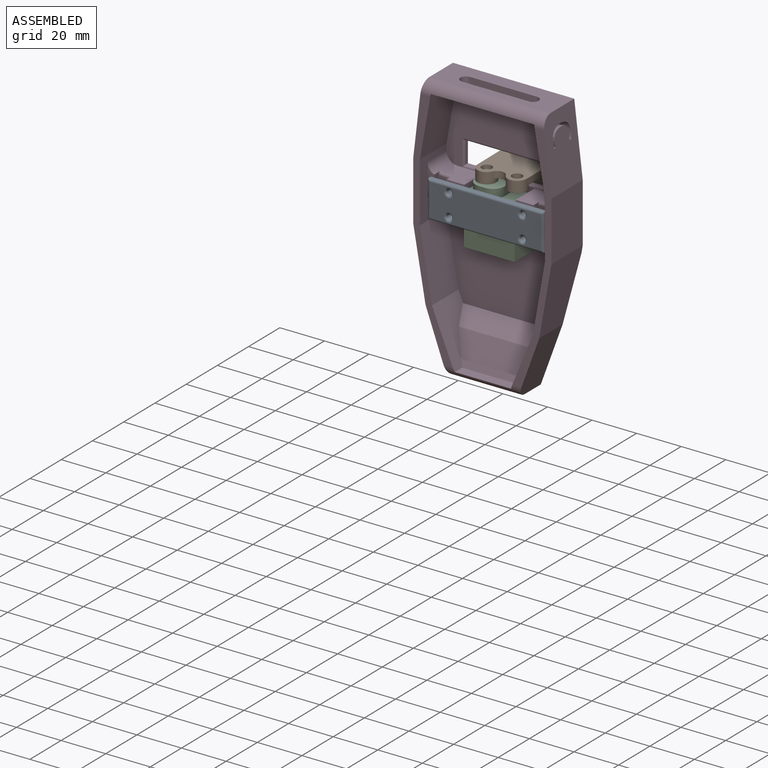
[diagram: assembled view]
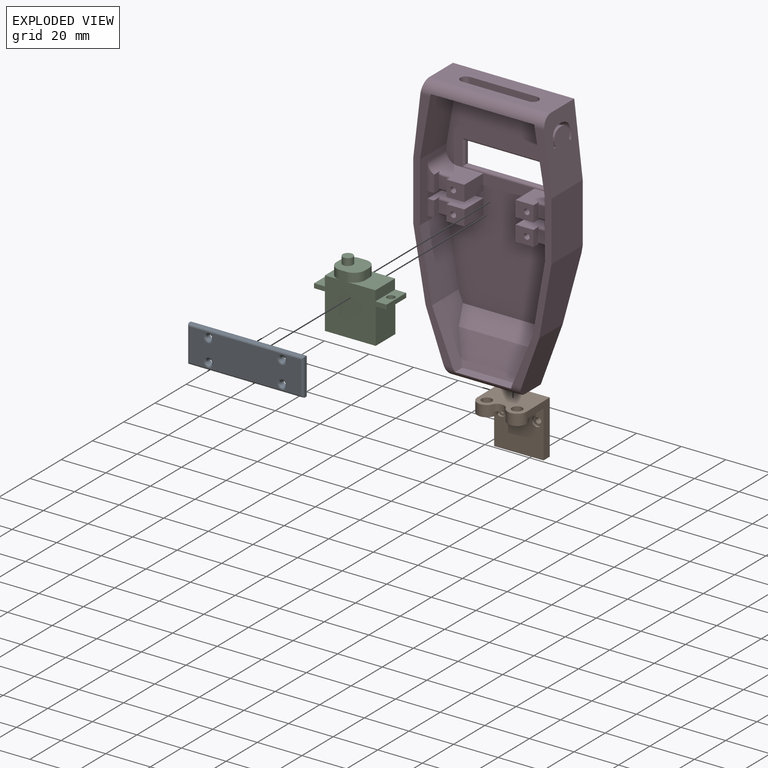
[diagram: exploded view]
GUIDED TOUR — MATED ASSEMBLY (Onshape document 9e62530b01b5d1049aa29101, AutoMate assembly 9e62530b01b5d1049aa29101_0b857b8ccb9b831618954fb7_9dfc92ab696563d88a37ce73_default)

This assembly has 4 components, labeled P0..P3 below (a component is one placed occurrence of a part; the same part can appear more than once), held together by 6 mates. A mate is a constraint between two components; its type names the relative motion it leaves free:
  FASTENED — locks the two components together rigidly (no relative motion),
  PLANAR — leaves sliding in the plane through the listed point (normal = the listed direction) and rotation about that normal free,
  REVOLUTE — leaves rotation about the listed axis free (a hinge).
Axis/direction vectors are unit vectors and 'through' points are millimeter coordinates, both in the assembly's world frame.

MATES
  1. PLANAR "Planar 2": P2 <-> P3, direction (0.000, 0.000, 1.000) through (27.91, 5.45, 15.18) mm
  2. PLANAR "Planar 3": P3 <-> P2, direction (-1.000, 0.000, 0.000) through (25.66, 12.00, 18.68) mm
  3. FASTENED "Fastened 1": P0 <-> P3, direction (0.000, 1.000, 0.000) through (30.66, 5.95, 18.68) mm
  4. REVOLUTE "Revolute 2": P0 <-> P3, axis (0.000, 1.000, 0.000) through (-2.34, 5.95, 8.68) mm
  5. PLANAR "Planar 1": P2 <-> P3, direction (0.000, 1.000, 0.000) through (14.08, 18.05, 8.89) mm
  6. REVOLUTE "Revolute 1": P1 <-> P2, axis (0.000, 0.000, -1.000) through (8.66, 11.75, 23.68) mm

ASSEMBLY ORDER
  1. P3 — the base component [order heuristic]
  2. P2 — core [order heuristic]
  3. P1 — core [order heuristic]
  4. P0 [order verified]
Order-tag legend:
  [order verified] — this step's position reverses a verified removal order: the component was checked to insert without passing through the ones already placed.
  [order heuristic] — the first 3 components form the assembly's core: parts whose collision-free extraction could not be verified, listed in mate-graph order.

Of the 4 components, 1 carries the full construction recipe — the FeatureScript program that regenerates the part's solid from scratch; the rest are supplied as boundary geometry only.
Each toured component is shown spotlighted twice — in the assembled view, then in the exploded view, where a leader line traces a displaced component back to its assembled socket (saturated green if recipe-attached, orange if geometry-only; every other component desaturated gray) — followed by its recipe or geometry summary and the mates that hold it.
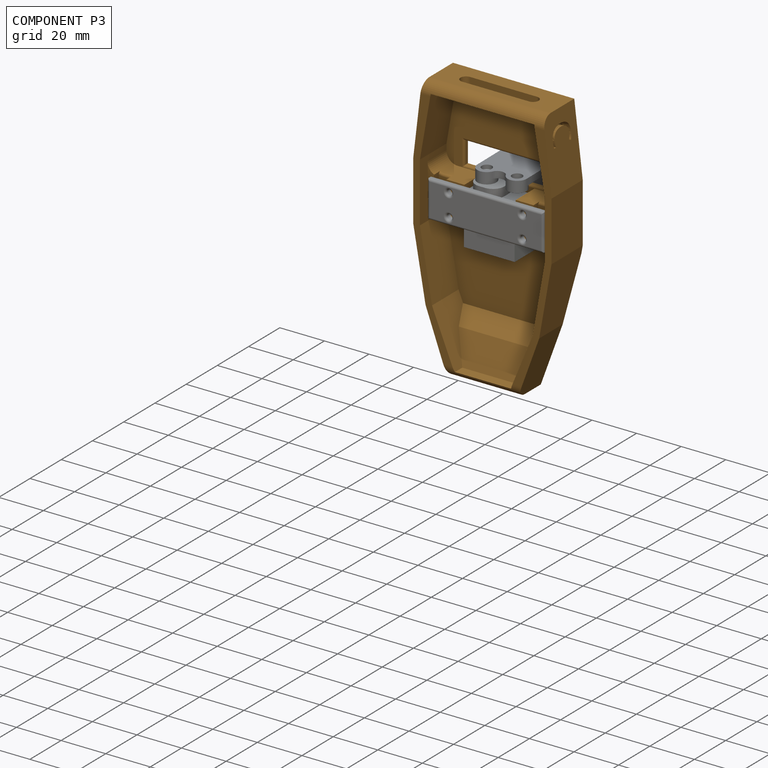
[diagram: component P3 — assembled]
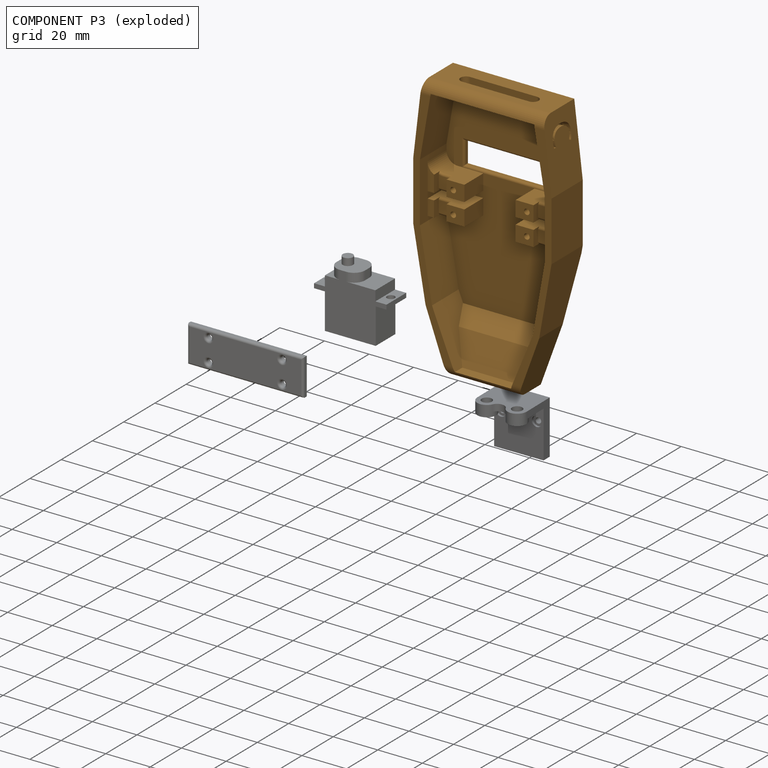
[diagram: component P3 — exploded]
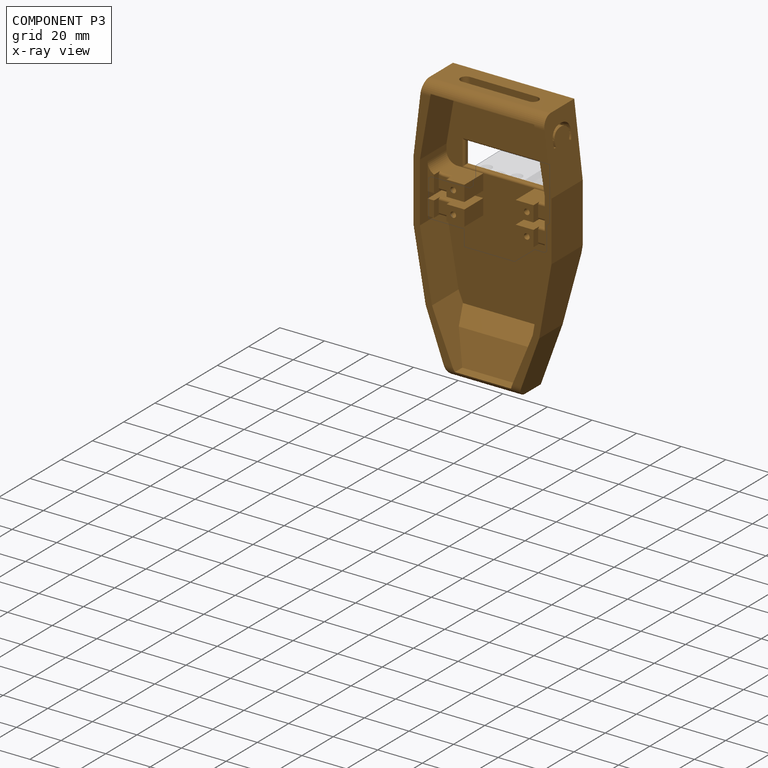
[diagram: component P3 — x-ray view]
COMPONENT P3 — geometry summary (no construction recipe available for this part):
  bounding box: 117.1 x 62.1 x 20.1 mm
  B-rep topology: 1 solid, 117 faces, 640 edges
  volume: 42399 mm^3 (29% of its bounding box)
  symmetry: mirror-symmetric across its x mid-plane
Held by: PLANAR mate "Planar 2" to P2; PLANAR mate "Planar 3" to P2; FASTENED mate "Fastened 1" to P0; REVOLUTE mate "Revolute 2" to P0; PLANAR mate "Planar 1" to P2.
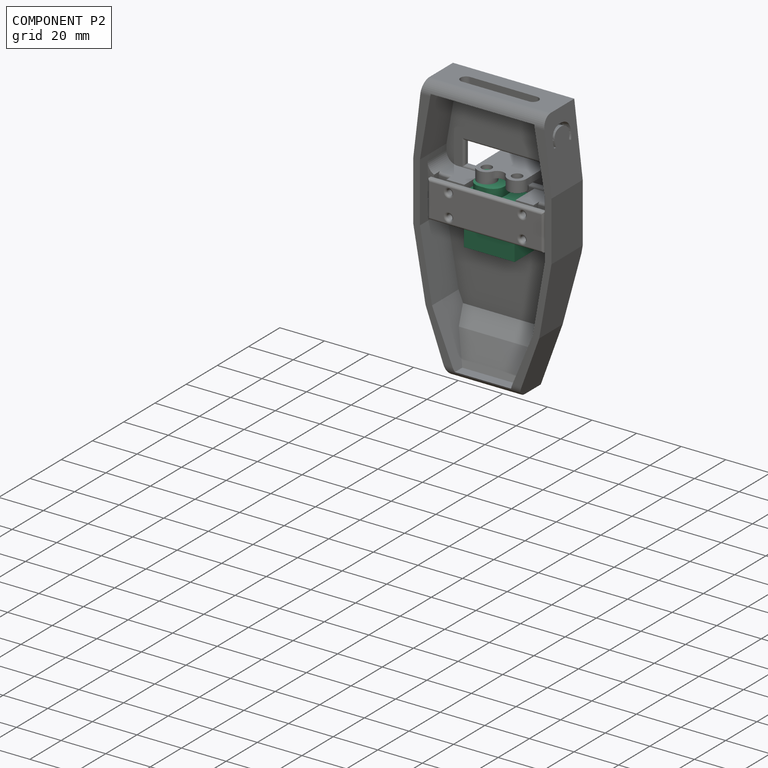
[diagram: component P2 — assembled]
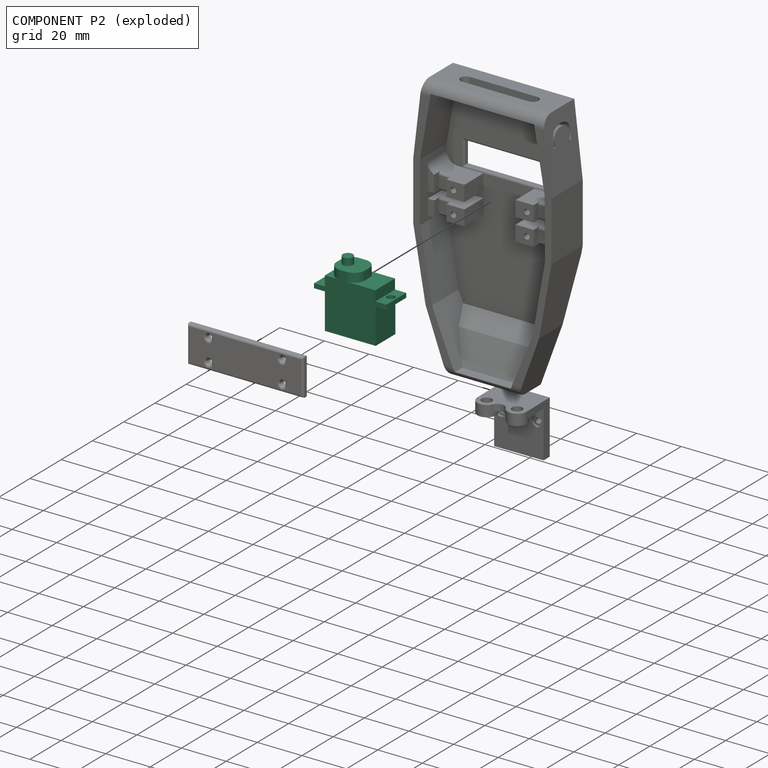
[diagram: component P2 — exploded]
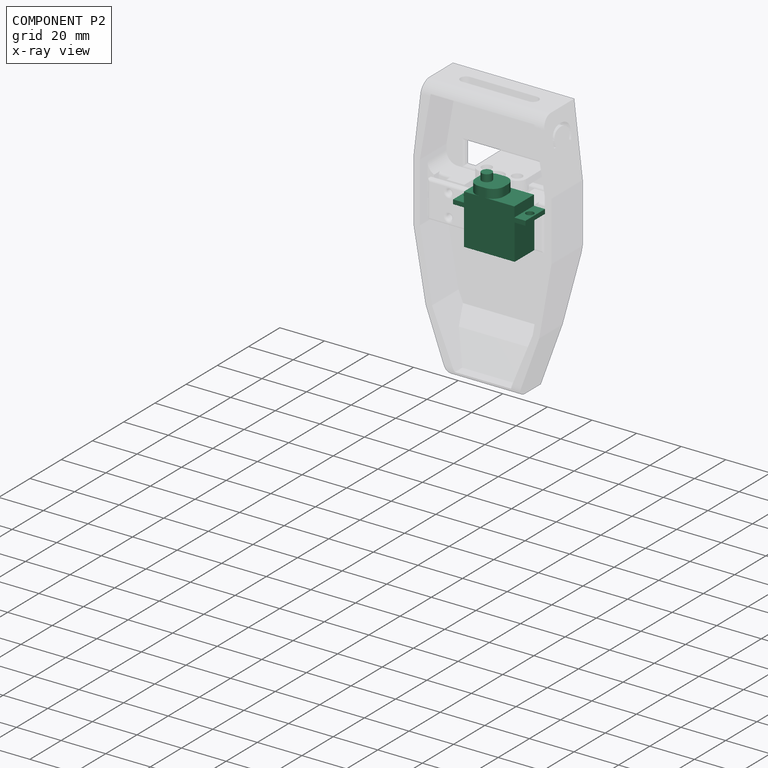
[diagram: component P2 — x-ray view]
COMPONENT P2 — recipe-attached (CADFS 00271476, mesh-verified: the recipe's output STEP matches this component's geometry to below the mesh-comparison resolution (tessellation chordal tolerance ~0.0687 mm)).
Held by: PLANAR mate "Planar 2" to P3; PLANAR mate "Planar 3" to P3; PLANAR mate "Planar 1" to P3; REVOLUTE mate "Revolute 1" to P1.
Construction recipe (FeatureScript — the CAD program that rebuilds this solid; sketch coordinates are in the units given by the * unit suffixes, e.g. mm):

FeatureScript 1511;
import(path : "onshape/std/geometry.fs", version : "1511.0");
import(path : "onshape/std/common.fs", version : "1511.0");
const mm = millimeter;
const VERTEX = EntityType.VERTEX;
const EDGE = EntityType.EDGE;
const FACE = EntityType.FACE;
const BODY = EntityType.BODY;
function v(x, y){return vector(x, y);}
function OD(order){return orderDisambiguation(order);}
function OSD(set){return originalSetDisambiguation(set);}
function TD(topology){return topologyDisambiguation(topology);}
function TDD(query){return trueDependencyDisambiguation(query);}
function sQuery(a, b, c) {return sketchEntityQuery(a, b, c);}

annotation { "Feature Type Name" : "Feature", "Feature Type Description" : "" }
export const myFeature = defineFeature(function(context is Context, id is Id, definition is map)
    precondition{}
    {
        {
            var Q0;
            Q0=qCreatedBy(makeId("Front.planeOp"),FACE);
            var sketch = newSketch(context, id + "F0", { "sketchPlane" : qUnion([Q0])});
            skLineSegment(sketch, "E0", {"start": v(0, 16) * mm, "end": v(0, 0) * mm});
            skLineSegment(sketch, "E1", {"start": v(0, 0) * mm, "end": v(22.8, 0) * mm});
            skLineSegment(sketch, "E2", {"start": v(22.8, 0) * mm, "end": v(22.8, 16) * mm});
            skLineSegment(sketch, "E3", {"start": v(22.8, 16) * mm, "end": v(27.65, 16) * mm});
            skLineSegment(sketch, "E4", {"start": v(27.65, 16) * mm, "end": v(27.65, 18) * mm});
            skLineSegment(sketch, "E5", {"start": v(27.65, 18) * mm, "end": v(22.65, 18) * mm});
            skLineSegment(sketch, "E6", {"start": v(0, 18) * mm, "end": v(-4.85, 18) * mm});
            skLineSegment(sketch, "E7", {"start": v(-4.85, 18) * mm, "end": v(-4.85, 16) * mm});
            skLineSegment(sketch, "E8", {"start": v(-4.85, 16) * mm, "end": v(0, 16) * mm});
            skLineSegment(sketch, "E9", {"start": v(0, 18) * mm, "end": v(0, 22.5) * mm});
            skLineSegment(sketch, "E10", {"start": v(0, 22.5) * mm, "end": v(1.76, 22.5) * mm});
            skLineSegment(sketch, "E11", {"start": v(1.76, 22.5) * mm, "end": v(1.76, 26.5) * mm});
            skLineSegment(sketch, "E12", {"start": v(1.76, 26.5) * mm, "end": v(14.57, 26.5) * mm});
            skLineSegment(sketch, "E13", {"start": v(14.57, 26.5) * mm, "end": v(14.57, 22.5) * mm});
            skLineSegment(sketch, "E14", {"start": v(14.57, 22.5) * mm, "end": v(22.65, 22.5) * mm});
            skLineSegment(sketch, "E15", {"start": v(22.65, 22.5) * mm, "end": v(22.65, 18) * mm});
            skSolve(sketch);
        }
        {
            var Q0;
            Q0 = qSketchRegion(id + "F0", true);
            extrude(context, id + "F1", {"entities" : qUnion([Q0]), "depth" : 12.6 * mm});
        }
        {
            var Q0;
            Q0=makeQuery(id+"F1.opExtrude","SWEPT_FACE",FACE,{"disambiguationData":[OSD([sQuery(id+"F0.wireOp",EDGE,"E5")])]});
            var sketch = newSketch(context, id + "F2", { "sketchPlane" : qUnion([Q0])});
            skCircle(sketch, "E16", {"center": v(-2.4, -6.3) * mm, "radius": 1.75 * mm});
            skCircle(sketch, "E17", {"center": v(25.2, -6.3) * mm, "radius": 1.75 * mm});
            skLineSegment(sketch, "E18", {"start": v(-4.85, -6.3) * mm, "end": v(-2.4, -6.3) * mm, "construction": true});
            skLineSegment(sketch, "E19", {"start": v(-2.4, -6.3) * mm, "end": v(25.2, -6.3) * mm, "construction": true});
            skLineSegment(sketch, "E20", {"start": v(25.2, -6.3) * mm, "end": v(27.65, -6.3) * mm, "construction": true});
            skSolve(sketch);
        }
        {
            var Q0;
            Q0 = qSketchRegion(id + "F2", true);
            extrude(context, id + "F3", {"entities" : qUnion([Q0]), "operationType" : NewBodyOperationType.REMOVE, "endBound" : BoundingType.UP_TO_NEXT, "oppositeDirection" : true, "depth" : 25 * mm});
        }
        {
            var Q0;
            Q0=makeQuery(id+"F1.opExtrude","SWEPT_FACE",FACE,{"disambiguationData":[OSD([sQuery(id+"F0.wireOp",EDGE,"E12")])]});
            var sketch = newSketch(context, id + "F4", { "sketchPlane" : qUnion([Q0])});
            skCircle(sketch, "E21", {"center": v(5.9, -6.3) * mm, "radius": 2.3 * mm});
            skLineSegment(sketch, "E22", {"start": v(5.9, -6.3) * mm, "end": v(1.76, -6.3) * mm, "construction": true});
            skSolve(sketch);
        }
        {
            var Q0;
            Q0 = qSketchRegion(id + "F4", true);
            extrude(context, id + "F5", {"entities" : qUnion([Q0]), "operationType" : NewBodyOperationType.ADD, "depth" : 3.2 * mm});
        }
        {
            var Q0;
            Q0=makeQuery(id+"F1.opExtrude","CAP_EDGE",EDGE,{"disambiguationData":[OSD([sQuery(id+"F0.wireOp",EDGE,"E13")])],"isStart":true});
            var Q1;
            Q1=makeQuery(id+"F1.opExtrude","CAP_EDGE",EDGE,{"disambiguationData":[OSD([sQuery(id+"F0.wireOp",EDGE,"E13")])],"isStart":false});
            var Q2;
            Q2=makeQuery(id+"F1.opExtrude","CAP_EDGE",EDGE,{"disambiguationData":[OSD([sQuery(id+"F0.wireOp",EDGE,"E11")])],"isStart":false});
            var Q3;
            Q3=makeQuery(id+"F1.opExtrude","CAP_EDGE",EDGE,{"disambiguationData":[OSD([sQuery(id+"F0.wireOp",EDGE,"E11")])],"isStart":true});
            fillet(context, id + "F6", {"entities" : qUnion([Q0, Q1, Q2, Q3]), "radius" : 5 * mm, "tangentPropagation" : true, "allowEdgeOverflow" : false});
        }
        {
            var Q0;
            Q0=makeQuery(id+"F1.opExtrude","SWEPT_FACE",FACE,{"disambiguationData":[OSD([sQuery(id+"F0.wireOp",EDGE,"E0")])]});
            var sketch = newSketch(context, id + "F7", { "sketchPlane" : qUnion([Q0])});
            skLineSegment(sketch, "E23", {"start": v(0, 5) * mm, "end": v(12.6, 5) * mm, "construction": true});
            skLineSegment(sketch, "E24.bottom", {"start": v(3, 6) * mm, "end": v(8.6, 6) * mm});
            skLineSegment(sketch, "E24.top", {"start": v(3, 4) * mm, "end": v(8.6, 4) * mm});
            skLineSegment(sketch, "E24.left", {"start": v(3, 6) * mm, "end": v(3, 4) * mm});
            skLineSegment(sketch, "E24.right", {"start": v(8.6, 6) * mm, "end": v(8.6, 4) * mm});
            skSolve(sketch);
        }
        {
            var Q0;
            Q0=makeQuery(id+"F7.imprint","IMPRINT",FACE,{"disambiguationData":[TD([[makeQuery(id+"F7.imprint","IMPRINT",EDGE,{"derivedFrom":sQuery(id+"F7.wireOp",EDGE,"E24.bottom")}),-1.0]])]});
            extrude(context, id + "F8", {"entities" : qUnion([Q0]), "operationType" : NewBodyOperationType.ADD, "depth" : 2 * mm});
        }
        {
            var Q0;
            Q0=makeQuery(id+"F8.opExtrude","SWEPT_EDGE",EDGE,{"disambiguationData":[OSD([sQuery(id+"F7.wireOp",EDGE,"E24.bottom"),sQuery(id+"F7.wireOp",EDGE,"E24.right")])]});
            var Q1;
            Q1=makeQuery(id+"F8.opExtrude","SWEPT_EDGE",EDGE,{"disambiguationData":[OSD([sQuery(id+"F7.wireOp",EDGE,"E24.bottom"),sQuery(id+"F7.wireOp",EDGE,"E24.left")])]});
            var Q2;
            Q2=makeQuery(id+"F8.opExtrude","SWEPT_EDGE",EDGE,{"disambiguationData":[OSD([sQuery(id+"F7.wireOp",EDGE,"E24.top"),sQuery(id+"F7.wireOp",EDGE,"E24.left")])]});
            var Q3;
            Q3=makeQuery(id+"F8.opExtrude","SWEPT_EDGE",EDGE,{"disambiguationData":[OSD([sQuery(id+"F7.wireOp",EDGE,"E24.top"),sQuery(id+"F7.wireOp",EDGE,"E24.right")])]});
            fillet(context, id + "F9", {"entities" : qUnion([Q0, Q1, Q2, Q3]), "radius" : 0.5 * mm, "tangentPropagation" : true, "allowEdgeOverflow" : false});
        }
    });
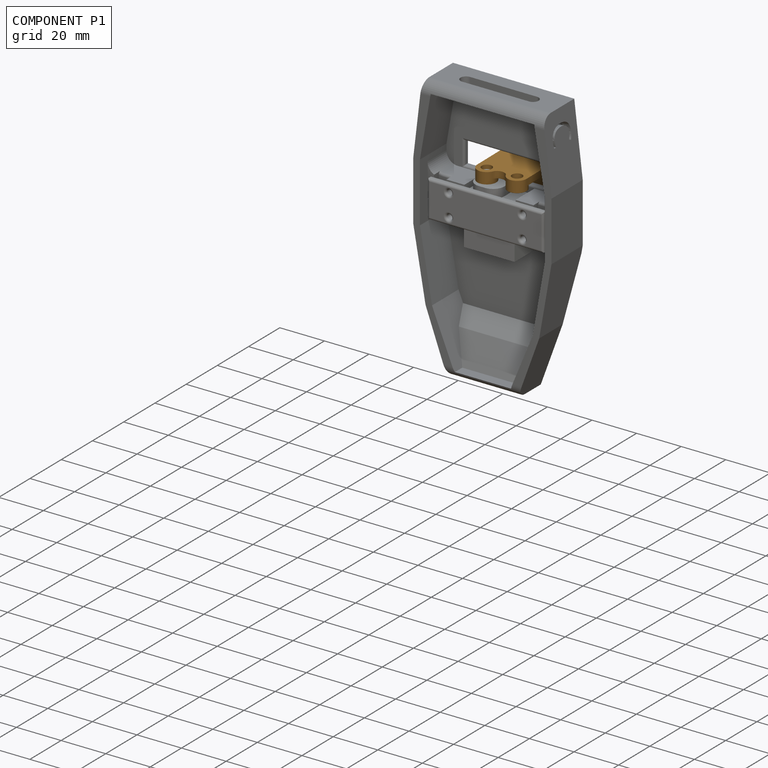
[diagram: component P1 — assembled]
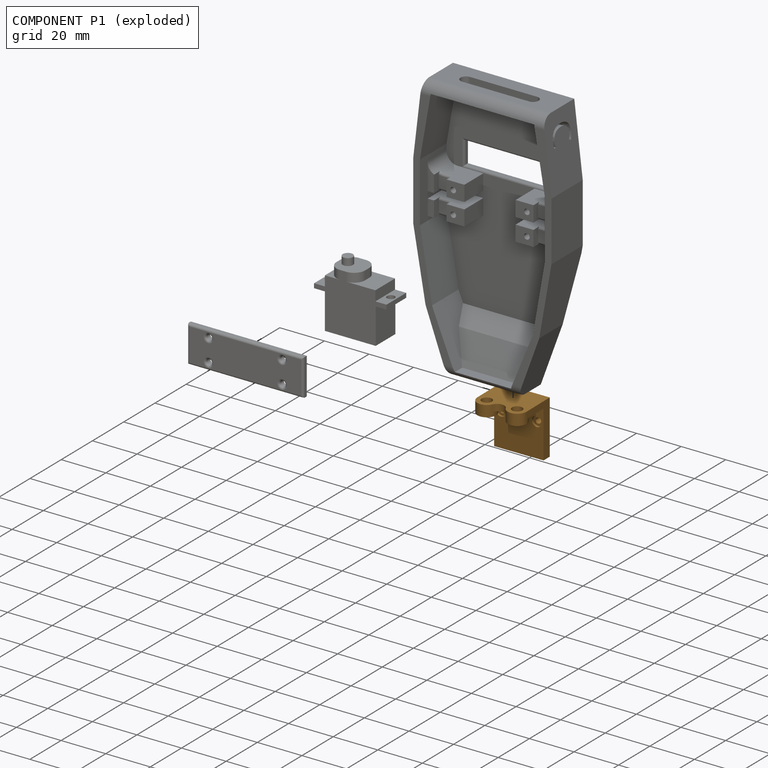
[diagram: component P1 — exploded]
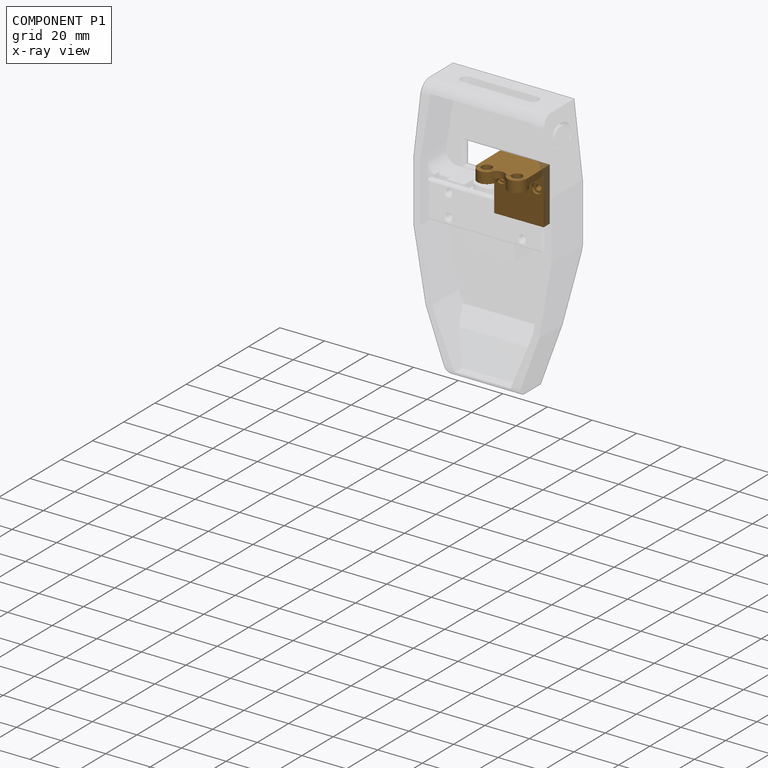
[diagram: component P1 — x-ray view]
COMPONENT P1 — geometry summary (no construction recipe available for this part):
  bounding box: 24.0 x 22.0 x 19.3 mm
  B-rep topology: 1 solid, 25 faces, 126 edges
  volume: 2983 mm^3 (29% of its bounding box)
  symmetry: mirror-symmetric across its y mid-plane
Held by: REVOLUTE mate "Revolute 1" to P2.
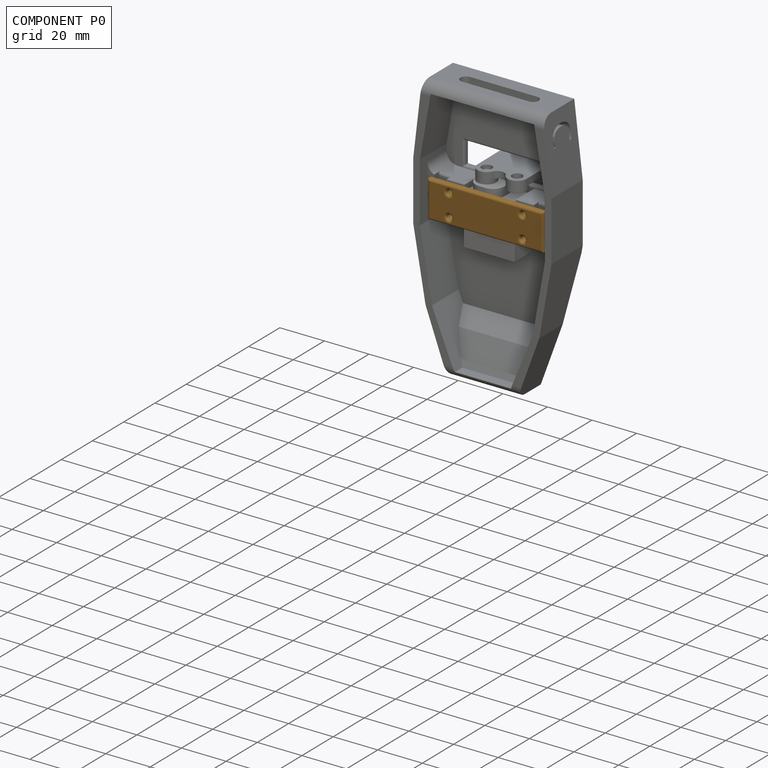
[diagram: component P0 — assembled]
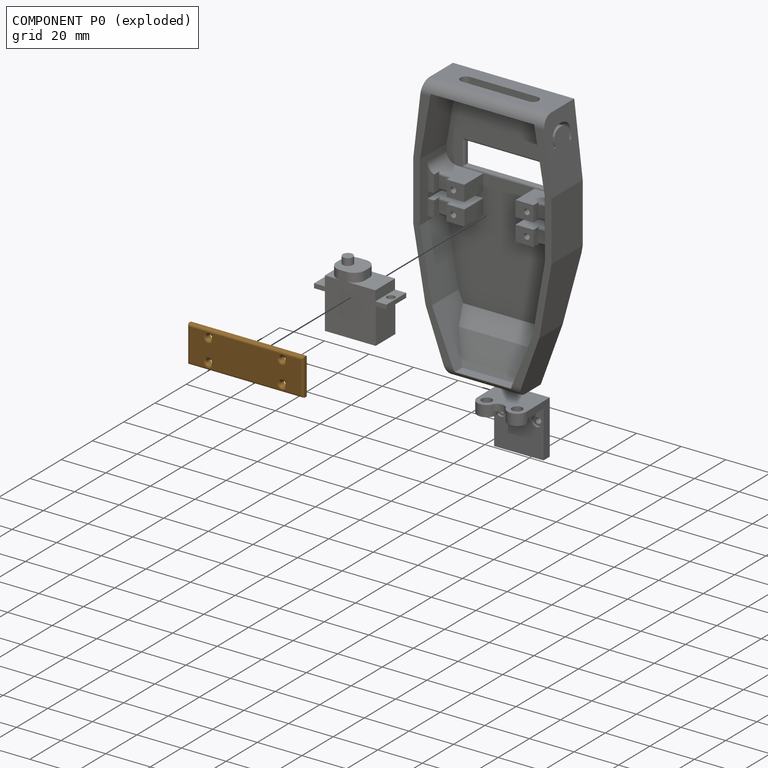
[diagram: component P0 — exploded]
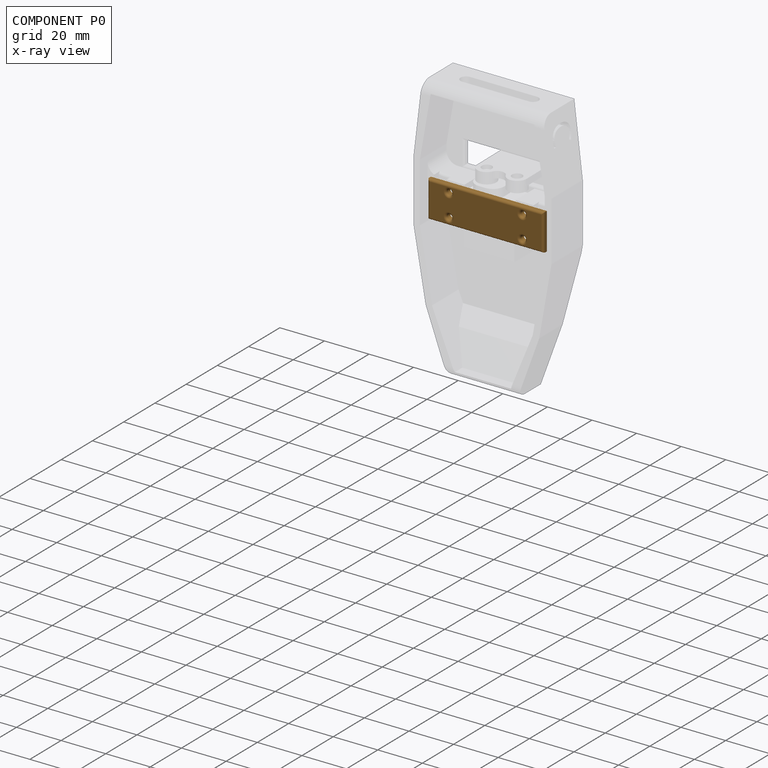
[diagram: component P0 — x-ray view]
COMPONENT P0 — geometry summary (no construction recipe available for this part):
  bounding box: 52.0 x 16.5 x 3.0 mm
  B-rep topology: 1 solid, 22 faces, 112 edges
  volume: 2449 mm^3 (95% of its bounding box)
  symmetry: 2-fold rotationally symmetric about the z axis; mirror-symmetric across its x mid-plane, y mid-plane
Held by: FASTENED mate "Fastened 1" to P3; REVOLUTE mate "Revolute 2" to P3.
PROVENANCE & LICENSES
Assembly (occurrences, transforms, mates, per-part STEP geometry): AutoMate dataset, Zenodo record 7776208, CC0.
Construction recipes: CADFS (HuggingFace VladPyatov/CADFS, CC-BY-4.0, layered over the ABC dataset), FeatureScript reconstruction programs keyed by ABC model id.
Join: ABC meta listings map ABC model id -> Onshape documentId; within a shared document, parts are matched by geometric signature (bounding-box dims + volume at 0.1% relative tolerance, exact B-rep face/solid counts).
Verification: 1 of this assembly's 4 components carries a recipe attachment, and every attachment is mesh-verified: the CADFS STEP and the AutoMate member STEP were compared as meshes in their shared local frame (symmetric sampled-point-to-mesh distance); worst across the 1 attachment: below the mesh-comparison resolution (tessellation chordal tolerance ~0.0687 mm) on a 46 mm part.
Renders: orthographic iso camera (az 35 / el 25); the floor grid conveys scale (grid pitch printed in each image; no ruler). In the exploded view each component is displaced by its stored offset vector: the offsets alone carry the explosion direction (mate normal/axis signs are not orientation cues and do not encode it), and separation distances are assigned per mate-chain, not proportionally to assembly-order depth.
